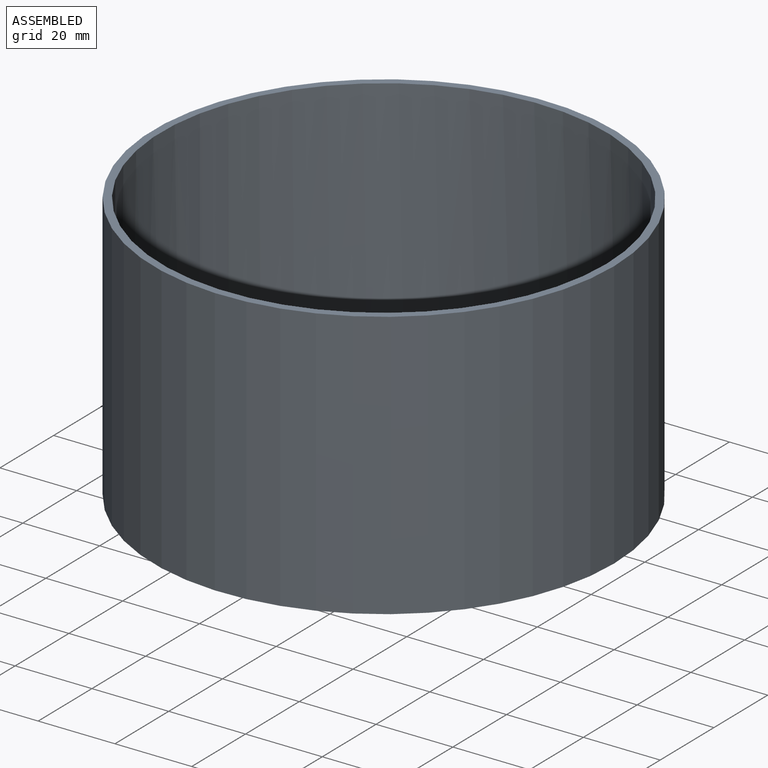
[diagram: assembled view]
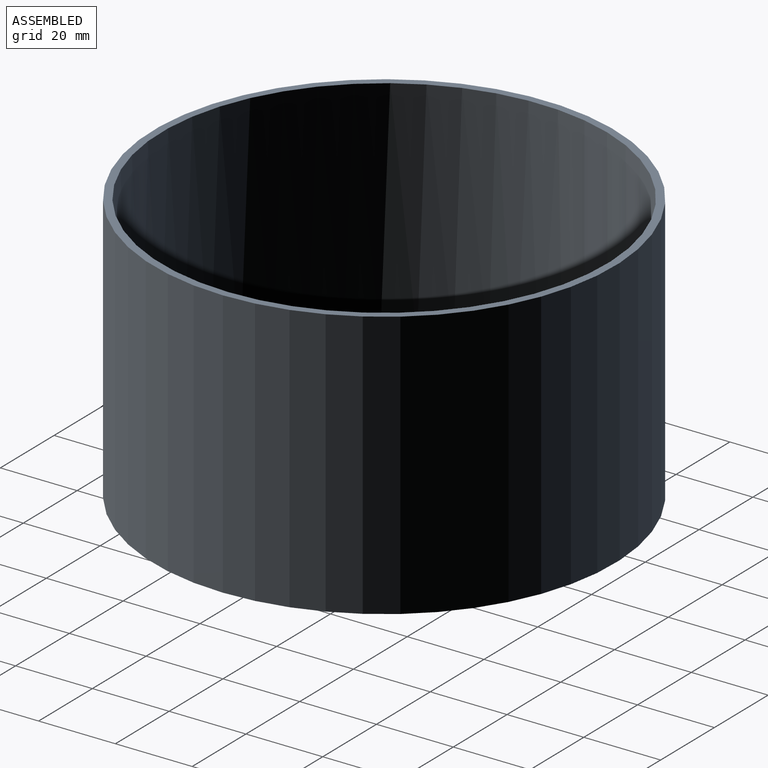
[diagram: assembled view, second angle]
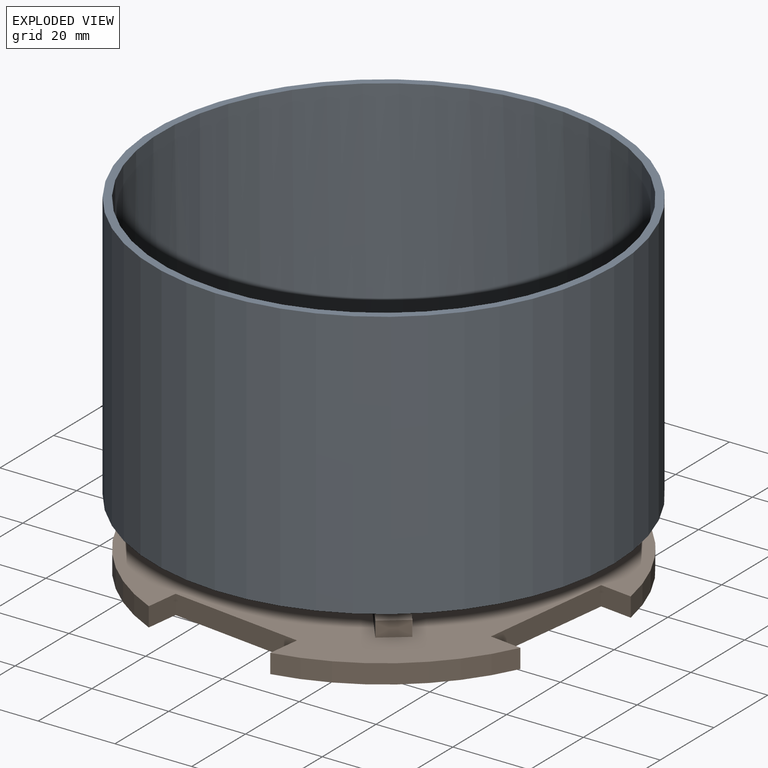
[diagram: exploded view]
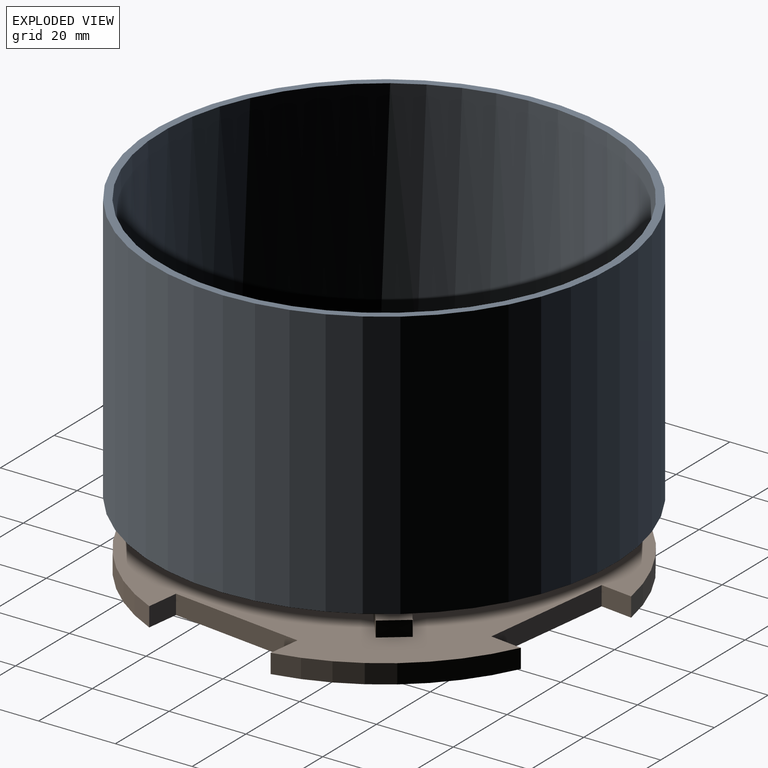
[diagram: exploded view, second angle]
ASSEMBLY  parts=2 mates=2
PART A: 8 faces, bbox 120x120x70 mm
  f0: plane 116x114.64mm, normal (0,0,1), area 10320.5mm2, adj f1,f5,f6,f7
  f1: cylinder r=58mm len=116mm, axis (0,0,-1), area 22117.5mm2, adj f0,f3,f4,f6,f7
  f2: cylinder r=60mm len=120mm, axis (0,0,-1), area 26389.4mm2, adj f3,f4
  f3: plane 120x120mm, normal (0,0,1), area 741.4mm2, adj f1,f2
  f4: plane 120x120mm, normal (0,0,-1), area 11062mm2, adj f1,f2,f5,f6,f7
  f5: plane 25x10mm, normal (-1,0,0), area 250mm2, adj f0,f4,f6,f7
  f6: plane 10x9mm, normal (0,-1,0), area 90mm2, adj f0,f1,f4,f5
  f7: plane 10x9mm, normal (0,1,0), area 90mm2, adj f0,f1,f4,f5
PART B: 38 faces, bbox 110.6x110.6x9 mm
  f0: plane 110.59x110.59mm, normal (0,0,1), area 8359.3mm2, adj f1,f2,f3,f4,f5,f6,f7,f8
  f1: cylinder r=58mm len=37.8mm, axis (0,0,-1), area 277.8mm2, adj f0,f2,f16,f17
  f2: plane 8.5x5mm, normal (0,1,0), area 42.5mm2, adj f0,f1,f3,f17
  f3: plane 35x5mm, normal (1,0,0), area 175mm2, adj f0,f2,f4,f17
  f4: plane 8.5x5mm, normal (0,-1,0), area 42.5mm2, adj f0,f3,f5,f17
  f5: cylinder r=58mm len=37.8mm, axis (0,0,-1), area 277.8mm2, adj f0,f4,f6,f17
  f6: plane 8.5x5mm, normal (-1,0,0), area 42.5mm2, adj f0,f5,f7,f17
  f7: plane 35x5mm, normal (0,1,0), area 175mm2, adj f0,f6,f8,f17
  f8: plane 8.5x5mm, normal (1,0,0), area 42.5mm2, adj f0,f7,f9,f17
  f9: cylinder r=58mm len=37.8mm, axis (0,0,-1), area 277.8mm2, adj f0,f8,f10,f17
  f10: plane 8.5x5mm, normal (0,-1,0), area 42.5mm2, adj f0,f9,f11,f17
  f11: plane 35x5mm, normal (-1,0,0), area 175mm2, adj f0,f10,f12,f17
  f12: plane 8.5x5mm, normal (0,1,0), area 42.5mm2, adj f0,f11,f13,f17
  f13: cylinder r=58mm len=37.8mm, axis (0,0,-1), area 277.8mm2, adj f0,f12,f14,f17
  f14: plane 8.5x5mm, normal (1,0,0), area 42.5mm2, adj f0,f13,f15,f17
  f15: plane 35x5mm, normal (0,-1,0), area 175mm2, adj f0,f14,f16,f17
  f16: plane 8.5x5mm, normal (-1,0,0), area 42.5mm2, adj f0,f1,f15,f17
  f17: plane 110.59x110.59mm, normal (0,0,-1), area 9124.8mm2, adj f1,f2,f3,f4,f5,f6,f7,f8
  f18: plane 17.13x17.13mm, normal (-0.71,-0.71,0), area 96.9mm2, adj f0,f19,f21,f22
  f19: plane 5.59x5.59mm, normal (0.71,-0.71,0), area 31.6mm2, adj f0,f18,f20,f22
  f20: plane 17.13x17.13mm, normal (0.71,0.71,0), area 96.9mm2, adj f0,f19,f21,f22
  f21: plane 5.59x5.59mm, normal (-0.71,0.71,0), area 31.6mm2, adj f0,f18,f20,f22
  f22: plane 22.72x22.72mm, normal (0,0,1), area 191.4mm2, adj f18,f19,f20,f21
  f23: plane 17.13x17.13mm, normal (0.71,-0.71,0), area 96.9mm2, adj f0,f24,f26,f27
  f24: plane 5.59x5.59mm, normal (0.71,0.71,0), area 31.6mm2, adj f0,f23,f25,f27
  f25: plane 17.13x17.13mm, normal (-0.71,0.71,0), area 96.9mm2, adj f0,f24,f26,f27
  f26: plane 5.59x5.59mm, normal (-0.71,-0.71,0), area 31.6mm2, adj f0,f23,f25,f27
  f27: plane 22.72x22.72mm, normal (0,0,1), area 191.4mm2, adj f23,f24,f25,f26
  f28: plane 17.13x17.13mm, normal (0.71,0.71,0), area 96.9mm2, adj f0,f29,f31,f32
  f29: plane 5.59x5.59mm, normal (-0.71,0.71,0), area 31.6mm2, adj f0,f28,f30,f32
  f30: plane 17.13x17.13mm, normal (-0.71,-0.71,0), area 96.9mm2, adj f0,f29,f31,f32
  f31: plane 5.59x5.59mm, normal (0.71,-0.71,0), area 31.6mm2, adj f0,f28,f30,f32
  f32: plane 22.72x22.72mm, normal (0,0,1), area 191.4mm2, adj f28,f29,f30,f31
  f33: plane 17.13x17.13mm, normal (-0.71,0.71,0), area 96.9mm2, adj f0,f34,f36,f37
  f34: plane 5.59x5.59mm, normal (-0.71,-0.71,0), area 31.6mm2, adj f0,f33,f35,f37
  f35: plane 17.13x17.13mm, normal (0.71,-0.71,0), area 96.9mm2, adj f0,f34,f36,f37
  f36: plane 5.59x5.59mm, normal (0.71,0.71,0), area 31.6mm2, adj f0,f33,f35,f37
  f37: plane 22.72x22.72mm, normal (0,0,1), area 191.4mm2, adj f33,f34,f35,f36
PLACE A at identity fixed
PLACE B rot(axis=(0,0,-1),7.3deg) t=(0,0,10)mm
MATE cylindrical B.f1 <-> A.f1  axis (0,0,-1) through (0,0,10)mm
MATE planar A.f0 <-> B.f1  axis (0,0,1) through (1.26,0,10)mm
